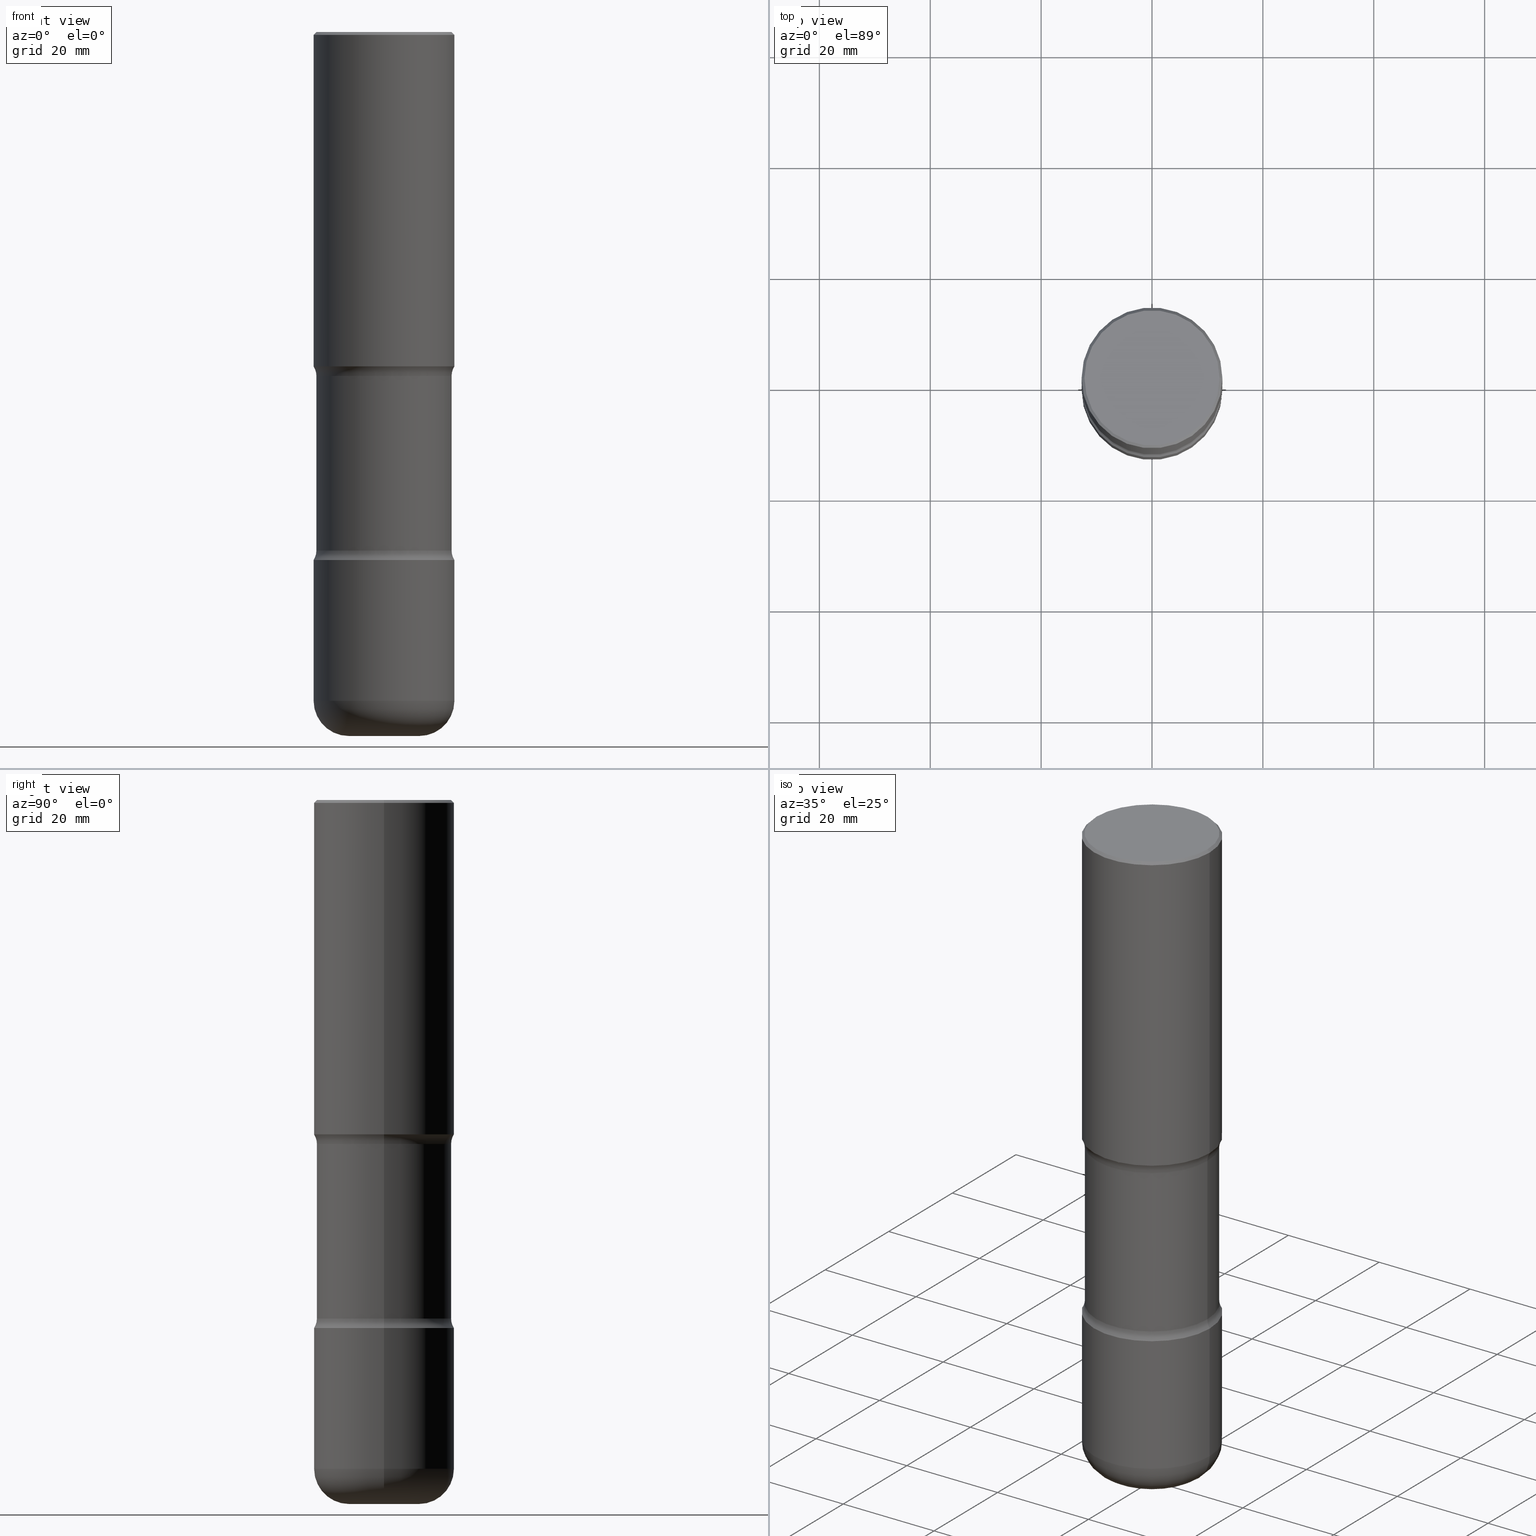
[diagram: canonical four-view strip — front | top / right | iso, engineering-drawing reading convention]
A machine part, canonical four-view strip (front | top / right | iso — engineering-drawing reading convention). The complete STEP part file that produces these views, byte-faithful:
ISO-10303-21;
HEADER;
FILE_DESCRIPTION (( 'STEP AP203' ),
    '1' );
FILE_NAME ('35810.STEP',
    '2023-03-11T07:11:28',
    ( '' ),
    ( '' ),
    'SwSTEP 2.0',
    'SolidWorks 2022',
    '' );
FILE_SCHEMA (( 'CONFIG_CONTROL_DESIGN' ));
ENDSEC;

DATA;
#1 = EDGE_CURVE ( 'NONE', #714, #13, #568, .T. ) ;
#2 = MANIFOLD_SOLID_BREP ( 'Body-Move/Copy2[3]', #5 ) ;
#3 = APPROVAL ( #485, 'UNSPECIFIED' ) ;
#4 = DIRECTION ( 'NONE',  ( 7.105427357601001859E-15, 1.000000000000000000, -3.491481338843145583E-15 ) ) ;
#5 = CLOSED_SHELL ( 'NONE', ( #628, #603, #366, #654, #671, #170, #561, #269 ) ) ;
#6 = CIRCLE ( 'NONE', #178, 0.5000000000000000000 ) ;
#7 = AXIS2_PLACEMENT_3D ( 'NONE', #384, #633, #65 ) ;
#8 = DIRECTION ( 'NONE',  ( 1.000000000000000000, -6.982962677686264344E-15, 0.000000000000000000 ) ) ;
#9 = PLANE ( 'NONE',  #738 ) ;
#10 = ORIENTED_EDGE ( 'NONE', *, *, #249, .F. ) ;
#11 = DIRECTION ( 'NONE',  ( 2.445468806185136877E-29, -3.491481338843145188E-15, -1.000000000000000000 ) ) ;
#12 = DIRECTION ( 'NONE',  ( -1.000000000000000000, 6.982962677686265922E-15, -4.876176775795935793E-29 ) ) ;
#13 = VERTEX_POINT ( 'NONE', #71 ) ;
#14 = ORIENTED_EDGE ( 'NONE', *, *, #89, .T. ) ;
#15 = CARTESIAN_POINT ( 'NONE',  ( 4.890937612370299433E-31, -6.982962677686328587E-17, -0.02000000000000010797 ) ) ;
#16 = DIRECTION ( 'NONE',  ( 2.438088387897960049E-29, -3.491481338843145188E-15, -1.000000000000000000 ) ) ;
#17 = ORIENTED_EDGE ( 'NONE', *, *, #728, .T. ) ;
#18 = VERTEX_POINT ( 'NONE', #702 ) ;
#19 = MANIFOLD_SOLID_BREP ( 'Body-Move/Copy2[1]', #56 ) ;
#20 = CLOSED_SHELL ( 'NONE', ( #118, #250, #487, #220, #734, #396 ) ) ;
#21 = CIRCLE ( 'NONE', #726, 0.5000000000000000000 ) ;
#22 = FACE_OUTER_BOUND ( 'NONE', #263, .T. ) ;
#23 = DIRECTION ( 'NONE',  ( -2.438088387897960049E-29, 3.491481338843145188E-15, 1.000000000000000000 ) ) ;
#24 = CARTESIAN_POINT ( 'NONE',  ( 5.807988414689700538E-29, -8.292268179752471696E-15, -2.375000000000000000 ) ) ;
#25 = CARTESIAN_POINT ( 'NONE',  ( 1.221026450042967533E-28, -1.743302165121203264E-14, -4.993015846101650723 ) ) ;
#26 = ORIENTED_EDGE ( 'NONE', *, *, #155, .F. ) ;
#27 = DIRECTION ( 'NONE',  ( 2.445468806185136597E-29, -3.491481338843145583E-15, -1.000000000000000000 ) ) ;
#28 = DIRECTION ( 'NONE',  ( -2.445468806185136597E-29, 3.491481338843145583E-15, 1.000000000000000000 ) ) ;
#29 = ORIENTED_EDGE ( 'NONE', *, *, #572, .T. ) ;
#30 = CARTESIAN_POINT ( 'NONE',  ( 1.161597682937940108E-28, -1.658453635950494339E-14, -4.750000000000000000 ) ) ;
#31 = DIRECTION ( 'NONE',  ( -1.000000000000000000, 6.982962677686266711E-15, -4.883557194083112901E-29 ) ) ;
#32 = CALENDAR_DATE ( 2023, 11, 3 ) ;
#33 = ORIENTED_EDGE ( 'NONE', *, *, #681, .T. ) ;
#34 = AXIS2_PLACEMENT_3D ( 'NONE', #288, #538, #45 ) ;
#35 = AXIS2_PLACEMENT_3D ( 'NONE', #59, #204, #446 ) ;
#36 = CIRCLE ( 'NONE', #765, 0.2500000000000000555 ) ;
#37 = DIRECTION ( 'NONE',  ( -2.445468806185136597E-29, 3.491481338843145583E-15, 1.000000000000000000 ) ) ;
#38 = APPROVAL_STATUS ( 'not_yet_approved' ) ;
#39 = EDGE_CURVE ( 'NONE', #290, #650, #381, .T. ) ;
#40 = CARTESIAN_POINT ( 'NONE',  ( 9.170508023194262238E-29, -1.309305502066179741E-14, -3.750000000000000000 ) ) ;
#41 = EDGE_CURVE ( 'NONE', #597, #275, #79, .T. ) ;
#42 = EDGE_LOOP ( 'NONE', ( #221, #510 ) ) ;
#43 =( NAMED_UNIT ( * ) SI_UNIT ( $, .STERADIAN. ) SOLID_ANGLE_UNIT ( ) );
#44 = DIRECTION ( 'NONE',  ( -1.000000000000000000, 6.982962677686265922E-15, 0.000000000000000000 ) ) ;
#45 = DIRECTION ( 'NONE',  ( 1.000000000000000000, -6.982962677686276966E-15, 0.000000000000000000 ) ) ;
#46 = CARTESIAN_POINT ( 'NONE',  ( 0.4999999999999999445, -2.007601769834807675E-14, -4.750000000000000000 ) ) ;
#47 = ORIENTED_EDGE ( 'NONE', *, *, #433, .T. ) ;
#48 = CIRCLE ( 'NONE', #643, 0.2499999999999998612 ) ;
#49 = CIRCLE ( 'NONE', #60, 0.5000000000000000000 ) ;
#50 = DIRECTION ( 'NONE',  ( 1.000000000000000000, -6.982962677686266711E-15, 0.000000000000000000 ) ) ;
#51 = ORIENTED_EDGE ( 'NONE', *, *, #433, .F. ) ;
#52 = FACE_OUTER_BOUND ( 'NONE', #228, .T. ) ;
#53 = PLANE ( 'NONE',  #248 ) ;
#54 = DIRECTION ( 'NONE',  ( -2.438088387897960049E-29, 3.491481338843145188E-15, 1.000000000000000000 ) ) ;
#55 = VERTEX_POINT ( 'NONE', #770 ) ;
#56 = CLOSED_SHELL ( 'NONE', ( #75, #194, #299, #566, #300, #693, #581, #106 ) ) ;
#57 = DIRECTION ( 'NONE',  ( 2.445468806185136597E-29, -3.491481338843145583E-15, -1.000000000000000000 ) ) ;
#58 = CIRCLE ( 'NONE', #382, 0.5000000000000000000 ) ;
#59 = CARTESIAN_POINT ( 'NONE',  ( 9.004648259124392254E-29, -1.285625123496221394E-14, -3.682176700168747541 ) ) ;
#60 = AXIS2_PLACEMENT_3D ( 'NONE', #24, #705, #327 ) ;
#61 = CYLINDRICAL_SURFACE ( 'NONE', #482, 0.4999999999999998335 ) ;
#62 = CC_DESIGN_APPROVAL ( #3, ( #383 ) ) ;
#63 = EDGE_CURVE ( 'NONE', #286, #18, #226, .T. ) ;
#64 = DIRECTION ( 'NONE',  ( -1.000000000000000000, 6.982962677686266711E-15, 0.000000000000000000 ) ) ;
#65 = DIRECTION ( 'NONE',  ( 1.000000000000000000, -6.982962677686265922E-15, 4.883557194083112901E-29 ) ) ;
#66 = LINE ( 'NONE', #336, #437 ) ;
#67 = FACE_BOUND ( 'NONE', #81, .T. ) ;
#68 = PERSON ( 'UNSPECIFIED', 'UNSPECIFIED', 'UNSPECIFIED', ('UNSPECIFIED'), ('UNSPECIFIED'), ('UNSPECIFIED') ) ;
#69 = CARTESIAN_POINT ( 'NONE',  ( 5.807988414689700538E-29, -8.292268179752471696E-15, -2.375000000000000000 ) ) ;
#70 = CARTESIAN_POINT ( 'NONE',  ( 0.000000000000000000, 0.000000000000000000, 0.000000000000000000 ) ) ;
#71 = CARTESIAN_POINT ( 'NONE',  ( -0.4799999999999996492, 3.386736898677836436E-15, 1.280553747027767124E-17 ) ) ;
#72 = AXIS2_PLACEMENT_3D ( 'NONE', #578, #452, #394 ) ;
#73 = DIRECTION ( 'NONE',  ( -6.982962677686266711E-15, -1.000000000000000000, 3.491481338843145583E-15 ) ) ;
#74 = AXIS2_PLACEMENT_3D ( 'NONE', #750, #27, #279 ) ;
#75 = ADVANCED_FACE ( 'NONE', ( #128 ), #494, .F. ) ;
#76 = CARTESIAN_POINT ( 'NONE',  ( 0.5000000000000000000, -1.178374951859560347E-14, -2.375000000000000000 ) ) ;
#77 = VERTEX_POINT ( 'NONE', #184 ) ;
#78 = CYLINDRICAL_SURFACE ( 'NONE', #656, 0.4800000000000000933 ) ;
#79 = LINE ( 'NONE', #25, #104 ) ;
#80 = PLANE ( 'NONE',  #504 ) ;
#81 = EDGE_LOOP ( 'NONE', ( #771, #461 ) ) ;
#82 = DIRECTION ( 'NONE',  ( 0.7071067811865452413, -7.319954787623248157E-15, -0.7071067811865497932 ) ) ;
#83 = VERTEX_POINT ( 'NONE', #188 ) ;
#84 = DIRECTION ( 'NONE',  ( 1.000000000000000000, -6.982962677686264344E-15, 0.000000000000000000 ) ) ;
#85 = FACE_OUTER_BOUND ( 'NONE', #215, .T. ) ;
#86 = CARTESIAN_POINT ( 'NONE',  ( -3.131554243005659264E-46, 4.471029511141341874E-32, 1.280553747030123384E-17 ) ) ;
#87 = AXIS2_PLACEMENT_3D ( 'NONE', #158, #775, #653 ) ;
#88 = AXIS2_PLACEMENT_3D ( 'NONE', #600, #168, #268 ) ;
#89 = EDGE_CURVE ( 'NONE', #13, #77, #507, .T. ) ;
#90 = DIRECTION ( 'NONE',  ( 2.445468806185136597E-29, -3.491481338843145583E-15, -1.000000000000000000 ) ) ;
#91 = ORIENTED_EDGE ( 'NONE', *, *, #459, .T. ) ;
#92 = COORDINATED_UNIVERSAL_TIME_OFFSET ( 5, 0, .BEHIND. ) ;
#93 = EDGE_CURVE ( 'NONE', #468, #166, #131, .T. ) ;
#94 = DIRECTION ( 'NONE',  ( -2.438088387897960049E-29, 3.491481338843145188E-15, 1.000000000000000000 ) ) ;
#95 = ORIENTED_EDGE ( 'NONE', *, *, #385, .T. ) ;
#96 = VERTEX_POINT ( 'NONE', #621 ) ;
#97 = DIRECTION ( 'NONE',  ( -1.000000000000000000, 7.105427357601001859E-15, 0.000000000000000000 ) ) ;
#98 = PERSON_AND_ORGANIZATION ( #68, #453 ) ;
#99 = DIRECTION ( 'NONE',  ( 1.000000000000000000, -6.982962677686267499E-15, 4.883557194083112901E-29 ) ) ;
#100 = EDGE_CURVE ( 'NONE', #529, #83, #466, .T. ) ;
#101 = DIRECTION ( 'NONE',  ( 2.438088387897960049E-29, -3.491481338843145188E-15, -1.000000000000000000 ) ) ;
#102 = DIRECTION ( 'NONE',  ( 1.000000000000000000, -6.982962677686261189E-15, 0.000000000000000000 ) ) ;
#103 = APPLICATION_PROTOCOL_DEFINITION ( 'international standard', 'config_control_design', 1994, #795 ) ;
#104 = VECTOR ( 'NONE', #757, 39.37007874015748143 ) ;
#105 = CIRCLE ( 'NONE', #395, 0.1249999999999999029 ) ;
#106 = ADVANCED_FACE ( 'NONE', ( #445 ), #590, .F. ) ;
#107 = ORIENTED_EDGE ( 'NONE', *, *, #777, .F. ) ;
#108 = AXIS2_PLACEMENT_3D ( 'NONE', #147, #598, #31 ) ;
#109 = EDGE_LOOP ( 'NONE', ( #255, #315, #588 ) ) ;
#110 = APPROVAL_DATE_TIME ( #786, #126 ) ;
#111 = ORIENTED_EDGE ( 'NONE', *, *, #195, .T. ) ;
#112 = DIRECTION ( 'NONE',  ( 1.000000000000000000, -6.982962677686269077E-15, 4.883557194083114022E-29 ) ) ;
#113 = EDGE_LOOP ( 'NONE', ( #352, #725, #14, #91 ) ) ;
#114 = VERTEX_POINT ( 'NONE', #258 ) ;
#115 = CARTESIAN_POINT ( 'NONE',  ( 1.161597682937940108E-28, -1.658453635950494339E-14, -4.750000000000000000 ) ) ;
#116 = ORIENTED_EDGE ( 'NONE', *, *, #698, .T. ) ;
#117 = EDGE_LOOP ( 'NONE', ( #230, #638, #246, #282 ) ) ;
#118 = ADVANCED_FACE ( 'NONE', ( #746 ), #448, .T. ) ;
#119 = CIRCLE ( 'NONE', #576, 0.4800000000000000933 ) ;
#120 = DIRECTION ( 'NONE',  ( -2.445468806185136597E-29, 3.491481338843145583E-15, 1.000000000000000000 ) ) ;
#121 = AXIS2_PLACEMENT_3D ( 'NONE', #132, #317, #457 ) ;
#122 = PRODUCT ( '35810', '35810', '', ( #303 ) ) ;
#123 = AXIS2_PLACEMENT_3D ( 'NONE', #496, #604, #102 ) ;
#124 = DIRECTION ( 'NONE',  ( -2.445468806185136597E-29, 3.491481338843145583E-15, 1.000000000000000000 ) ) ;
#125 = ORIENTED_EDGE ( 'NONE', *, *, #688, .T. ) ;
#126 = APPROVAL ( #38, 'UNSPECIFIED' ) ;
#127 = CARTESIAN_POINT ( 'NONE',  ( 9.170508023194262238E-29, -1.309305502066179741E-14, -3.750000000000000000 ) ) ;
#128 = FACE_OUTER_BOUND ( 'NONE', #109, .T. ) ;
#129 = CARTESIAN_POINT ( 'NONE',  ( 1.084885639565374248E-27, -1.548929168812571305E-13, -44.36309458625913749 ) ) ;
#130 = DIRECTION ( 'NONE',  ( 6.860497997771531562E-15, 1.000000000000000000, -3.491481338843145583E-15 ) ) ;
#131 = CIRCLE ( 'NONE', #410, 0.5000000000000000000 ) ;
#132 = CARTESIAN_POINT ( 'NONE',  ( 0.6049999999999998712, -1.267967325410383095E-14, -2.442823299831253347 ) ) ;
#133 = VECTOR ( 'NONE', #351, 39.37007874015748143 ) ;
#134 = CARTESIAN_POINT ( 'NONE',  ( 0.000000000000000000, 0.000000000000000000, 0.000000000000000000 ) ) ;
#135 = CARTESIAN_POINT ( 'NONE',  ( 1.222734403092568523E-28, -1.745740669421572989E-14, -5.000000000000000000 ) ) ;
#136 = ORIENTED_EDGE ( 'NONE', *, *, #238, .T. ) ;
#137 = CARTESIAN_POINT ( 'NONE',  ( 5.973848178759570522E-29, -8.529071965452055172E-15, -2.442823299831253347 ) ) ;
#138 = DIRECTION ( 'NONE',  ( 1.000000000000000000, -6.982962677686268288E-15, 0.000000000000000000 ) ) ;
#139 = ORIENTED_EDGE ( 'NONE', *, *, #733, .F. ) ;
#140 = DIRECTION ( 'NONE',  ( 1.000000000000000000, -6.982962677686265133E-15, 0.000000000000000000 ) ) ;
#141 = VERTEX_POINT ( 'NONE', #343 ) ;
#142 = EDGE_CURVE ( 'NONE', #474, #141, #685, .T. ) ;
#143 = DIRECTION ( 'NONE',  ( -2.445468806185136597E-29, 3.491481338843145583E-15, 1.000000000000000000 ) ) ;
#144 = EDGE_CURVE ( 'NONE', #290, #740, #348, .T. ) ;
#145 = DIRECTION ( 'NONE',  ( -2.445468806185136877E-29, 3.491481338843145188E-15, 1.000000000000000000 ) ) ;
#146 = VECTOR ( 'NONE', #380, 39.37007874015748143 ) ;
#147 = CARTESIAN_POINT ( 'NONE',  ( 9.004648259124392254E-29, -1.285625123496221394E-14, -3.682176700168747541 ) ) ;
#148 = VECTOR ( 'NONE', #232, 39.37007874015748143 ) ;
#149 = DIRECTION ( 'NONE',  ( 1.000000000000000000, -6.982962677686265922E-15, 4.876176775795935793E-29 ) ) ;
#150 = CARTESIAN_POINT ( 'NONE',  ( 1.203196691032471165E-28, -8.995283030165400417E-15, -3.750000000000000000 ) ) ;
#151 = ORIENTED_EDGE ( 'NONE', *, *, #1, .F. ) ;
#152 = VERTEX_POINT ( 'NONE', #407 ) ;
#153 = DIRECTION ( 'NONE',  ( -2.445468806185136597E-29, 3.491481338843145583E-15, 1.000000000000000000 ) ) ;
#154 = EDGE_CURVE ( 'NONE', #540, #275, #789, .T. ) ;
#155 = EDGE_CURVE ( 'NONE', #256, #114, #697, .T. ) ;
#156 = ADVANCED_BREP_SHAPE_REPRESENTATION ( '35810', ( #19, #557, #2, #306, #325 ), #668 ) ;
#157 = DIRECTION ( 'NONE',  ( -2.445468806185136597E-29, 3.491481338843145583E-15, 1.000000000000000000 ) ) ;
#158 = CARTESIAN_POINT ( 'NONE',  ( 9.170508023194262238E-29, -1.309305502066179741E-14, -3.750000000000000000 ) ) ;
#159 = ORIENTED_EDGE ( 'NONE', *, *, #142, .T. ) ;
#160 = CARTESIAN_POINT ( 'NONE',  ( -0.6050000000000000933, -8.557467683613607939E-15, -3.682176700168747541 ) ) ;
#161 = AXIS2_PLACEMENT_3D ( 'NONE', #115, #556, #363 ) ;
#162 = PERSON_AND_ORGANIZATION_ROLE ( 'creator' ) ;
#163 = LOCAL_TIME ( 2, 11, 28.00000000000000000, #167 ) ;
#164 = PLANE ( 'NONE',  #534 ) ;
#165 = LINE ( 'NONE', #293, #790 ) ;
#166 = VERTEX_POINT ( 'NONE', #266 ) ;
#167 = COORDINATED_UNIVERSAL_TIME_OFFSET ( 5, 0, .BEHIND. ) ;
#168 = DIRECTION ( 'NONE',  ( 2.445468806185136597E-29, -3.491481338843145583E-15, -1.000000000000000000 ) ) ;
#169 = DIRECTION ( 'NONE',  ( 1.000000000000000000, -6.982962677686269077E-15, 4.883557194083114022E-29 ) ) ;
#170 = ADVANCED_FACE ( 'NONE', ( #747 ), #471, .T. ) ;
#171 = DIRECTION ( 'NONE',  ( 2.445468806185136597E-29, -3.491481338843145583E-15, -1.000000000000000000 ) ) ;
#172 = DATE_AND_TIME ( #660, #179 ) ;
#173 = CARTESIAN_POINT ( 'NONE',  ( 9.004648259124392254E-29, -1.285625123496221394E-14, -3.682176700168747541 ) ) ;
#174 = CARTESIAN_POINT ( 'NONE',  ( 1.203196691032471165E-28, -8.995283030165400417E-15, -3.750000000000000000 ) ) ;
#175 = CC_DESIGN_PERSON_AND_ORGANIZATION_ASSIGNMENT ( #247, #162, ( #464 ) ) ;
#176 = FACE_OUTER_BOUND ( 'NONE', #117, .T. ) ;
#177 = ORIENTED_EDGE ( 'NONE', *, *, #155, .T. ) ;
#178 = AXIS2_PLACEMENT_3D ( 'NONE', #514, #455, #140 ) ;
#179 = LOCAL_TIME ( 2, 11, 28.00000000000000000, #354 ) ;
#180 = ORIENTED_EDGE ( 'NONE', *, *, #63, .T. ) ;
#181 = CARTESIAN_POINT ( 'NONE',  ( 0.5000000000000001110, -1.652330401954756320E-14, -3.750000000000000000 ) ) ;
#182 = ORIENTED_EDGE ( 'NONE', *, *, #342, .F. ) ;
#183 = CALENDAR_DATE ( 2023, 11, 3 ) ;
#184 = CARTESIAN_POINT ( 'NONE',  ( -0.4999999999999996669, 3.421651712066267691E-15, -0.02000000000000010797 ) ) ;
#185 = CARTESIAN_POINT ( 'NONE',  ( 4.890937612370299433E-31, -6.982962677686328587E-17, -0.02000000000000010797 ) ) ;
#186 = EDGE_LOOP ( 'NONE', ( #781, #481, #33, #339 ) ) ;
#187 = EDGE_LOOP ( 'NONE', ( #151, #731, #17, #535 ) ) ;
#188 = CARTESIAN_POINT ( 'NONE',  ( -0.5000000000000001110, -9.601573681818664059E-15, -3.750000000000000000 ) ) ;
#189 = FACE_OUTER_BOUND ( 'NONE', #680, .T. ) ;
#190 = ORIENTED_EDGE ( 'NONE', *, *, #393, .F. ) ;
#191 = TOROIDAL_SURFACE ( 'NONE', #642, 0.2500000000000000000, 0.2499999999999998890 ) ;
#192 = CIRCLE ( 'NONE', #161, 0.5000000000000000000 ) ;
#193 = EDGE_LOOP ( 'NONE', ( #432, #627 ) ) ;
#194 = ADVANCED_FACE ( 'NONE', ( #456 ), #402, .T. ) ;
#195 = EDGE_CURVE ( 'NONE', #114, #468, #634, .T. ) ;
#196 = DIRECTION ( 'NONE',  ( 1.000000000000000000, -6.982962677686268288E-15, 0.000000000000000000 ) ) ;
#197 = CARTESIAN_POINT ( 'NONE',  ( 9.004648259124392254E-29, -1.285625123496221394E-14, -3.682176700168747541 ) ) ;
#198 =( LENGTH_UNIT ( ) NAMED_UNIT ( * ) SI_UNIT ( $, .METRE. ) );
#199 = FACE_OUTER_BOUND ( 'NONE', #187, .T. ) ;
#200 = VECTOR ( 'NONE', #646, 39.37007874015748143 ) ;
#201 = CIRCLE ( 'NONE', #311, 0.1250000000000000278 ) ;
#202 = PRODUCT_DEFINITION_FORMATION_WITH_SPECIFIED_SOURCE ( 'ANY', '', #122, .NOT_KNOWN. ) ;
#203 = DIRECTION ( 'NONE',  ( -2.445468806185136597E-29, 3.491481338843145583E-15, 1.000000000000000000 ) ) ;
#204 = DIRECTION ( 'NONE',  ( -2.445468806185136597E-29, 3.491481338843145583E-15, 1.000000000000000000 ) ) ;
#205 = EDGE_LOOP ( 'NONE', ( #558, #766, #159, #690 ) ) ;
#206 = EDGE_CURVE ( 'NONE', #96, #501, #66, .T. ) ;
#207 = LINE ( 'NONE', #752, #620 ) ;
#208 = CC_DESIGN_PERSON_AND_ORGANIZATION_ASSIGNMENT ( #723, #616, ( #383 ) ) ;
#209 = DIRECTION ( 'NONE',  ( -1.000000000000000000, 6.982962677686265922E-15, -4.876176775795935793E-29 ) ) ;
#210 = ORIENTED_EDGE ( 'NONE', *, *, #63, .F. ) ;
#211 = ORIENTED_EDGE ( 'NONE', *, *, #596, .F. ) ;
#212 = CARTESIAN_POINT ( 'NONE',  ( 1.222734403092568523E-28, -1.745740669421572989E-14, -5.000000000000000000 ) ) ;
#213 = DIRECTION ( 'NONE',  ( 1.000000000000000000, -6.982962677686265133E-15, 0.000000000000000000 ) ) ;
#214 = ORIENTED_EDGE ( 'NONE', *, *, #596, .T. ) ;
#215 = EDGE_LOOP ( 'NONE', ( #542, #391, #10, #345 ) ) ;
#216 = ORIENTED_EDGE ( 'NONE', *, *, #413, .F. ) ;
#217 = VECTOR ( 'NONE', #794, 39.37007874015748143 ) ;
#218 = CIRCLE ( 'NONE', #498, 0.4999999999999996669 ) ;
#219 = CARTESIAN_POINT ( 'NONE',  ( 5.973848178759569401E-29, -8.529071965452053594E-15, -2.442823299831252903 ) ) ;
#220 = ADVANCED_FACE ( 'NONE', ( #270 ), #80, .F. ) ;
#221 = ORIENTED_EDGE ( 'NONE', *, *, #625, .T. ) ;
#222 = ORIENTED_EDGE ( 'NONE', *, *, #674, .T. ) ;
#223 = DIRECTION ( 'NONE',  ( -1.000000000000000000, 6.982962677686265922E-15, -4.883557194083112901E-29 ) ) ;
#224 = CARTESIAN_POINT ( 'NONE',  ( 1.222734403092568523E-28, -1.745740669421572989E-14, -5.000000000000000000 ) ) ;
#225 = DIRECTION ( 'NONE',  ( -2.445468806185136597E-29, 3.491481338843145583E-15, 1.000000000000000000 ) ) ;
#226 = LINE ( 'NONE', #476, #749 ) ;
#227 = VERTEX_POINT ( 'NONE', #764 ) ;
#228 = EDGE_LOOP ( 'NONE', ( #310, #29, #216, #190 ) ) ;
#229 = CARTESIAN_POINT ( 'NONE',  ( 1.161597682937940108E-28, -1.658453635950494339E-14, -4.750000000000000000 ) ) ;
#230 = ORIENTED_EDGE ( 'NONE', *, *, #698, .F. ) ;
#231 = EDGE_LOOP ( 'NONE', ( #787, #222, #491, #434 ) ) ;
#232 = DIRECTION ( 'NONE',  ( -0.9993908270190957621, 6.856857904024560415E-15, -0.03489949670249996999 ) ) ;
#233 = TOROIDAL_SURFACE ( 'NONE', #545, 0.2500000000000000000, 0.2499999999999998890 ) ;
#234 = TOROIDAL_SURFACE ( 'NONE', #569, 0.6049999999999998712, 0.1249999999999998751 ) ;
#235 = CIRCLE ( 'NONE', #399, 0.5000000000000000000 ) ;
#236 = DIRECTION ( 'NONE',  ( 1.000000000000000000, -6.982962677686264344E-15, 0.000000000000000000 ) ) ;
#237 = CARTESIAN_POINT ( 'NONE',  ( 9.004648259124392254E-29, -1.285625123496221394E-14, -3.682176700168747541 ) ) ;
#238 = EDGE_CURVE ( 'NONE', #650, #501, #119, .T. ) ;
#239 = DATE_TIME_ROLE ( 'creation_date' ) ;
#240 = ORIENTED_EDGE ( 'NONE', *, *, #515, .T. ) ;
#241 = DIRECTION ( 'NONE',  ( 1.000000000000000000, -6.982962677686268288E-15, 0.000000000000000000 ) ) ;
#242 = CARTESIAN_POINT ( 'NONE',  ( 0.2500000000000000000, -1.833027702892651007E-14, -4.750000000000000000 ) ) ;
#243 = ORIENTED_EDGE ( 'NONE', *, *, #512, .F. ) ;
#244 = PERSON_AND_ORGANIZATION_ROLE ( 'creator' ) ;
#245 = CARTESIAN_POINT ( 'NONE',  ( 5.807988414689700538E-29, -8.292268179752471696E-15, -2.375000000000000000 ) ) ;
#246 = ORIENTED_EDGE ( 'NONE', *, *, #342, .T. ) ;
#247 = PERSON_AND_ORGANIZATION ( #68, #453 ) ;
#248 = AXIS2_PLACEMENT_3D ( 'NONE', #245, #101, #314 ) ;
#249 = EDGE_CURVE ( 'NONE', #501, #650, #520, .T. ) ;
#250 = ADVANCED_FACE ( 'NONE', ( #199 ), #271, .T. ) ;
#251 = CC_DESIGN_DATE_AND_TIME_ASSIGNMENT ( #368, #541, ( #383 ) ) ;
#252 = ORIENTED_EDGE ( 'NONE', *, *, #617, .T. ) ;
#253 = CARTESIAN_POINT ( 'NONE',  ( 5.807988414689700538E-29, -8.292268179752471696E-15, -2.375000000000000000 ) ) ;
#254 = ORIENTED_EDGE ( 'NONE', *, *, #429, .T. ) ;
#255 = ORIENTED_EDGE ( 'NONE', *, *, #706, .F. ) ;
#256 = VERTEX_POINT ( 'NONE', #591 ) ;
#257 = AXIS2_PLACEMENT_3D ( 'NONE', #135, #143, #8 ) ;
#258 = CARTESIAN_POINT ( 'NONE',  ( -0.4999999999999999445, -1.303182268070444246E-14, -4.750000000000000000 ) ) ;
#259 = CIRCLE ( 'NONE', #737, 0.5000000000000000000 ) ;
#260 = CC_DESIGN_APPROVAL ( #126, ( #202 ) ) ;
#261 = DIRECTION ( 'NONE',  ( -1.000000000000000000, 6.982962677686265922E-15, -4.876176775795935793E-29 ) ) ;
#262 = EDGE_CURVE ( 'NONE', #799, #286, #618, .T. ) ;
#263 = EDGE_LOOP ( 'NONE', ( #438, #444, #136, #308 ) ) ;
#264 = LINE ( 'NONE', #565, #146 ) ;
#265 = DIRECTION ( 'NONE',  ( -1.000000000000000000, 6.982962677686266711E-15, 0.000000000000000000 ) ) ;
#266 = CARTESIAN_POINT ( 'NONE',  ( 0.5000000000000000000, -1.658453635950493077E-14, -3.750000000000000000 ) ) ;
#267 = FACE_OUTER_BOUND ( 'NONE', #744, .T. ) ;
#268 = DIRECTION ( 'NONE',  ( -1.000000000000000000, 6.982962677686266711E-15, 0.000000000000000000 ) ) ;
#269 = ADVANCED_FACE ( 'NONE', ( #687 ), #328, .T. ) ;
#270 = FACE_OUTER_BOUND ( 'NONE', #193, .T. ) ;
#271 = CONICAL_SURFACE ( 'NONE', #711, 0.4999999999999996669, 0.7853981633974450594 ) ;
#272 = AXIS2_PLACEMENT_3D ( 'NONE', #511, #735, #64 ) ;
#273 = CC_DESIGN_SECURITY_CLASSIFICATION ( #383, ( #202 ) ) ;
#274 = FACE_OUTER_BOUND ( 'NONE', #796, .T. ) ;
#275 = VERTEX_POINT ( 'NONE', #390 ) ;
#276 = DIRECTION ( 'NONE',  ( 1.000000000000000000, -6.982962677686267499E-15, 4.876176775795936353E-29 ) ) ;
#277 = DIRECTION ( 'NONE',  ( 1.000000000000000000, -6.982962677686264344E-15, 0.000000000000000000 ) ) ;
#278 = DIRECTION ( 'NONE',  ( -1.000000000000000000, 7.105427357601001859E-15, 0.000000000000000000 ) ) ;
#279 = DIRECTION ( 'NONE',  ( -1.000000000000000000, 6.982962677686265922E-15, 0.000000000000000000 ) ) ;
#280 = DIRECTION ( 'NONE',  ( -2.445468806185136597E-29, 3.491481338843145583E-15, 1.000000000000000000 ) ) ;
#281 = DIRECTION ( 'NONE',  ( 1.000000000000000000, -6.982962677686267499E-15, 4.876176775795936353E-29 ) ) ;
#282 = ORIENTED_EDGE ( 'NONE', *, *, #512, .T. ) ;
#283 = AXIS2_PLACEMENT_3D ( 'NONE', #700, #516, #277 ) ;
#284 = ORIENTED_EDGE ( 'NONE', *, *, #459, .F. ) ;
#285 = AXIS2_PLACEMENT_3D ( 'NONE', #612, #90, #44 ) ;
#286 = VERTEX_POINT ( 'NONE', #76 ) ;
#287 = CIRCLE ( 'NONE', #123, 0.1250000000000000278 ) ;
#288 = CARTESIAN_POINT ( 'NONE',  ( 0.6050000000000000933, -1.708094365496240561E-14, -3.682176700168747541 ) ) ;
#289 = CARTESIAN_POINT ( 'NONE',  ( 5.807988414689700538E-29, -8.292268179752471696E-15, -2.375000000000000000 ) ) ;
#290 = VERTEX_POINT ( 'NONE', #636 ) ;
#291 = DIRECTION ( 'NONE',  ( 1.000000000000000000, 0.000000000000000000, 0.000000000000000000 ) ) ;
#292 = DIRECTION ( 'NONE',  ( 1.000000000000000000, -6.982962677686265922E-15, 4.883557194083112901E-29 ) ) ;
#293 = CARTESIAN_POINT ( 'NONE',  ( 0.4999999999999996669, -3.500078625662626713E-15, -0.02000000000000010797 ) ) ;
#294 = ORIENTED_EDGE ( 'NONE', *, *, #647, .T. ) ;
#295 = DIRECTION ( 'NONE',  ( -2.445468806185136597E-29, 3.491481338843145583E-15, 1.000000000000000000 ) ) ;
#296 = FACE_OUTER_BOUND ( 'NONE', #353, .T. ) ;
#297 = DIRECTION ( 'NONE',  ( 0.000000000000000000, 0.000000000000000000, 1.000000000000000000 ) ) ;
#298 = DIRECTION ( 'NONE',  ( -2.445468806185136597E-29, 3.491481338843145583E-15, 1.000000000000000000 ) ) ;
#299 = ADVANCED_FACE ( 'NONE', ( #274 ), #233, .T. ) ;
#300 = ADVANCED_FACE ( 'NONE', ( #493 ), #191, .T. ) ;
#301 = AXIS2_PLACEMENT_3D ( 'NONE', #237, #225, #670 ) ;
#302 = CONICAL_SURFACE ( 'NONE', #359, 0.4999999999999996669, 0.7853981633974450594 ) ;
#303 = MECHANICAL_CONTEXT ( 'NONE', #795, 'mechanical' ) ;
#304 = CARTESIAN_POINT ( 'NONE',  ( 5.807988414689700538E-29, -8.292268179752471696E-15, -2.375000000000000000 ) ) ;
#305 = EDGE_LOOP ( 'NONE', ( #240, #417 ) ) ;
#306 = MANIFOLD_SOLID_BREP ( 'Body-Move/Copy2[4]', #761 ) ;
#307 = CARTESIAN_POINT ( 'NONE',  ( 0.4800000000000000933, -1.188089405074146193E-14, -2.442823299831252903 ) ) ;
#308 = ORIENTED_EDGE ( 'NONE', *, *, #550, .F. ) ;
#309 = CARTESIAN_POINT ( 'NONE',  ( 0.4800000000000002043, -1.633629714672005731E-14, -3.682176700168747541 ) ) ;
#310 = ORIENTED_EDGE ( 'NONE', *, *, #741, .T. ) ;
#311 = AXIS2_PLACEMENT_3D ( 'NONE', #329, #130, #575 ) ;
#312 = AXIS2_PLACEMENT_3D ( 'NONE', #332, #743, #800 ) ;
#313 = DIRECTION ( 'NONE',  ( -1.000000000000000000, 6.982962677686266711E-15, 0.000000000000000000 ) ) ;
#314 = DIRECTION ( 'NONE',  ( -1.000000000000000000, 6.982962677686265922E-15, -4.876176775795935793E-29 ) ) ;
#315 = ORIENTED_EDGE ( 'NONE', *, *, #41, .T. ) ;
#316 = EDGE_CURVE ( 'NONE', #96, #649, #322, .T. ) ;
#317 = DIRECTION ( 'NONE',  ( 6.860497997771531562E-15, 1.000000000000000000, -3.491481338843145583E-15 ) ) ;
#318 = DIRECTION ( 'NONE',  ( 1.000000000000000000, -6.982962677686265922E-15, 4.876176775795935793E-29 ) ) ;
#319 = APPROVAL ( #672, 'UNSPECIFIED' ) ;
#320 = CYLINDRICAL_SURFACE ( 'NONE', #497, 0.4800000000000000933 ) ;
#321 = ORIENTED_EDGE ( 'NONE', *, *, #429, .F. ) ;
#322 = CIRCLE ( 'NONE', #301, 0.4800000000000001488 ) ;
#323 = AXIS2_PLACEMENT_3D ( 'NONE', #150, #651, #209 ) ;
#324 = AXIS2_PLACEMENT_3D ( 'NONE', #802, #806, #261 ) ;
#325 = AXIS2_PLACEMENT_3D ( 'NONE', #427, #297, #291 ) ;
#326 = CARTESIAN_POINT ( 'NONE',  ( 5.973848178759569401E-29, -8.529071965452053594E-15, -2.442823299831252903 ) ) ;
#327 = DIRECTION ( 'NONE',  ( -1.000000000000000000, 6.982962677686266711E-15, 0.000000000000000000 ) ) ;
#328 = CYLINDRICAL_SURFACE ( 'NONE', #531, 0.4800000000000000933 ) ;
#329 = CARTESIAN_POINT ( 'NONE',  ( 0.6050000000000000933, -1.700685252361399287E-14, -3.682176700168747541 ) ) ;
#330 = CARTESIAN_POINT ( 'NONE',  ( -3.131554243005659264E-46, 4.471029511141341874E-32, 1.280553747030123384E-17 ) ) ;
#331 = DIRECTION ( 'NONE',  ( -1.000000000000000000, 7.105427357601000281E-15, 0.000000000000000000 ) ) ;
#332 = CARTESIAN_POINT ( 'NONE',  ( 9.004648259124392254E-29, -1.285625123496221394E-14, -3.682176700168747541 ) ) ;
#333 = DIRECTION ( 'NONE',  ( 7.105427357601001859E-15, 1.000000000000000000, -3.491481338843145583E-15 ) ) ;
#334 = CIRCLE ( 'NONE', #506, 0.2500000000000000555 ) ;
#335 = CARTESIAN_POINT ( 'NONE',  ( -0.4800000000000000933, -1.408119956592262430E-14, -4.993015846101650723 ) ) ;
#336 = CARTESIAN_POINT ( 'NONE',  ( 0.4800000000000000933, -1.164409026504188161E-14, -2.375000000000000000 ) ) ;
#337 = ADVANCED_FACE ( 'NONE', ( #661 ), #721, .F. ) ;
#338 = ORIENTED_EDGE ( 'NONE', *, *, #773, .F. ) ;
#339 = ORIENTED_EDGE ( 'NONE', *, *, #413, .T. ) ;
#340 = DIRECTION ( 'NONE',  ( 2.445468806185136597E-29, -3.491481338843145583E-15, -1.000000000000000000 ) ) ;
#341 = DIRECTION ( 'NONE',  ( 1.000000000000000000, -6.982962677686269077E-15, 0.000000000000000000 ) ) ;
#342 = EDGE_CURVE ( 'NONE', #96, #398, #736, .T. ) ;
#343 = CARTESIAN_POINT ( 'NONE',  ( -0.5000000000000001110, -4.800786840909337551E-15, -2.375000000000000000 ) ) ;
#344 = EDGE_LOOP ( 'NONE', ( #709, #377, #252, #703 ) ) ;
#345 = ORIENTED_EDGE ( 'NONE', *, *, #206, .F. ) ;
#346 = DIRECTION ( 'NONE',  ( 1.000000000000000000, -6.982962677686264344E-15, 0.000000000000000000 ) ) ;
#347 = DIRECTION ( 'NONE',  ( -2.445468806185136597E-29, 3.491481338843145583E-15, 1.000000000000000000 ) ) ;
#348 = CIRCLE ( 'NONE', #605, 0.5000000000000000000 ) ;
#349 = AXIS2_PLACEMENT_3D ( 'NONE', #562, #171, #420 ) ;
#350 = LOCAL_TIME ( 2, 11, 28.00000000000000000, #611 ) ;
#351 = DIRECTION ( 'NONE',  ( -2.445468806185136877E-29, 3.491481338843145188E-15, 1.000000000000000000 ) ) ;
#352 = ORIENTED_EDGE ( 'NONE', *, *, #623, .F. ) ;
#353 = EDGE_LOOP ( 'NONE', ( #539, #254, #587, #774 ) ) ;
#354 = COORDINATED_UNIVERSAL_TIME_OFFSET ( 5, 0, .BEHIND. ) ;
#355 = ADVANCED_FACE ( 'NONE', ( #52 ), #673, .T. ) ;
#356 = CARTESIAN_POINT ( 'NONE',  ( 0.5000000000000001110, -1.178374951859560347E-14, -2.375000000000000000 ) ) ;
#357 = CARTESIAN_POINT ( 'NONE',  ( 1.161597682937940108E-28, -1.658453635950494339E-14, -4.750000000000000000 ) ) ;
#358 = AXIS2_PLACEMENT_3D ( 'NONE', #387, #4, #331 ) ;
#359 = AXIS2_PLACEMENT_3D ( 'NONE', #185, #613, #313 ) ;
#360 = ORIENTED_EDGE ( 'NONE', *, *, #674, .F. ) ;
#361 = PERSON_AND_ORGANIZATION ( #68, #453 ) ;
#362 = EDGE_CURVE ( 'NONE', #503, #166, #530, .T. ) ;
#363 = DIRECTION ( 'NONE',  ( 1.000000000000000000, -6.982962677686266711E-15, 0.000000000000000000 ) ) ;
#364 = PERSON_AND_ORGANIZATION ( #68, #453 ) ;
#365 = DIRECTION ( 'NONE',  ( 1.000000000000000000, -6.982962677686266711E-15, 0.000000000000000000 ) ) ;
#366 = ADVANCED_FACE ( 'NONE', ( #22 ), #412, .F. ) ;
#367 = ORIENTED_EDGE ( 'NONE', *, *, #716, .F. ) ;
#368 = DATE_AND_TIME ( #32, #428 ) ;
#369 = ORIENTED_EDGE ( 'NONE', *, *, #550, .T. ) ;
#370 = DIRECTION ( 'NONE',  ( -1.000000000000000000, 6.982962677686267499E-15, 0.000000000000000000 ) ) ;
#371 = CARTESIAN_POINT ( 'NONE',  ( 4.890937612370299433E-31, -6.982962677686328587E-17, -0.02000000000000010797 ) ) ;
#372 = ORIENTED_EDGE ( 'NONE', *, *, #362, .F. ) ;
#373 = CIRCLE ( 'NONE', #121, 0.1249999999999999029 ) ;
#374 = DIRECTION ( 'NONE',  ( 1.000000000000000000, -6.982962677686266711E-15, 0.000000000000000000 ) ) ;
#375 = ADVANCED_FACE ( 'NONE', ( #415 ), #686, .F. ) ;
#376 = DIRECTION ( 'NONE',  ( 1.000000000000000000, -6.982962677686266711E-15, 0.000000000000000000 ) ) ;
#377 = ORIENTED_EDGE ( 'NONE', *, *, #635, .T. ) ;
#378 = SHAPE_DEFINITION_REPRESENTATION ( #798, #156 ) ;
#379 = DIRECTION ( 'NONE',  ( -1.000000000000000000, 6.982962677686267499E-15, 0.000000000000000000 ) ) ;
#380 = DIRECTION ( 'NONE',  ( 2.445468806185136877E-29, -3.491481338843145188E-15, -1.000000000000000000 ) ) ;
#381 = CIRCLE ( 'NONE', #779, 0.1249999999999999029 ) ;
#382 = AXIS2_PLACEMENT_3D ( 'NONE', #30, #295, #715 ) ;
#383 = SECURITY_CLASSIFICATION ( '', '', #492 ) ;
#384 = CARTESIAN_POINT ( 'NONE',  ( 5.973848178759570522E-29, -8.529071965452055172E-15, -2.442823299831253347 ) ) ;
#385 = EDGE_CURVE ( 'NONE', #55, #503, #48, .T. ) ;
#386 = FACE_OUTER_BOUND ( 'NONE', #584, .T. ) ;
#387 = CARTESIAN_POINT ( 'NONE',  ( -0.2500000000000000000, -1.480817952010469293E-14, -4.750000000000000000 ) ) ;
#388 = CARTESIAN_POINT ( 'NONE',  ( 1.221026450042967533E-28, -1.743302165121203264E-14, -4.993015846101650723 ) ) ;
#389 = DESIGN_CONTEXT ( 'detailed design', #713, 'design' ) ;
#390 = CARTESIAN_POINT ( 'NONE',  ( 0.2000000000000001499, -1.882950629377003494E-14, -5.000000000000000000 ) ) ;
#391 = ORIENTED_EDGE ( 'NONE', *, *, #441, .T. ) ;
#392 = EDGE_LOOP ( 'NONE', ( #748, #294, #708, #595 ) ) ;
#393 = EDGE_CURVE ( 'NONE', #474, #227, #519, .T. ) ;
#394 = DIRECTION ( 'NONE',  ( 1.000000000000000000, -6.982962677686265133E-15, 0.000000000000000000 ) ) ;
#395 = AXIS2_PLACEMENT_3D ( 'NONE', #783, #676, #241 ) ;
#396 = ADVANCED_FACE ( 'NONE', ( #509 ), #61, .T. ) ;
#397 = CARTESIAN_POINT ( 'NONE',  ( 1.084885639565374248E-27, -1.548929168812571305E-13, -44.36309458625913749 ) ) ;
#398 = VERTEX_POINT ( 'NONE', #626 ) ;
#399 = AXIS2_PLACEMENT_3D ( 'NONE', #69, #472, #652 ) ;
#400 = DIRECTION ( 'NONE',  ( -2.445468806185136597E-29, 3.491481338843145583E-15, 1.000000000000000000 ) ) ;
#401 = ADVANCED_FACE ( 'NONE', ( #682 ), #320, .T. ) ;
#402 = CYLINDRICAL_SURFACE ( 'NONE', #555, 0.5000000000000000000 ) ;
#403 = ORIENTED_EDGE ( 'NONE', *, *, #478, .T. ) ;
#404 = ADVANCED_FACE ( 'NONE', ( #386 ), #234, .F. ) ;
#405 = EDGE_LOOP ( 'NONE', ( #26, #125, #95, #321 ) ) ;
#406 = EDGE_LOOP ( 'NONE', ( #458, #477, #139 ) ) ;
#407 = CARTESIAN_POINT ( 'NONE',  ( 0.5000000000000001110, -1.172251717863823748E-14, -2.375000000000000000 ) ) ;
#408 = DIRECTION ( 'NONE',  ( 7.105427357601001859E-15, 1.000000000000000000, -3.491481338843145583E-15 ) ) ;
#409 = FACE_OUTER_BOUND ( 'NONE', #729, .T. ) ;
#410 = AXIS2_PLACEMENT_3D ( 'NONE', #442, #120, #374 ) ;
#411 = EDGE_LOOP ( 'NONE', ( #403, #658 ) ) ;
#412 = TOROIDAL_SURFACE ( 'NONE', #780, 0.6049999999999998712, 0.1249999999999998751 ) ;
#413 = EDGE_CURVE ( 'NONE', #227, #462, #533, .T. ) ;
#414 = APPROVAL_PERSON_ORGANIZATION ( #361, #126, #730 ) ;
#415 = FACE_OUTER_BOUND ( 'NONE', #344, .T. ) ;
#416 = CC_DESIGN_PERSON_AND_ORGANIZATION_ASSIGNMENT ( #364, #431, ( #202 ) ) ;
#417 = ORIENTED_EDGE ( 'NONE', *, *, #144, .T. ) ;
#418 = CALENDAR_DATE ( 2023, 11, 3 ) ;
#419 = ORIENTED_EDGE ( 'NONE', *, *, #478, .F. ) ;
#420 = DIRECTION ( 'NONE',  ( -1.000000000000000000, 6.982962677686265922E-15, -4.883557194083112901E-29 ) ) ;
#421 =( CONVERSION_BASED_UNIT ( 'INCH', #772 ) LENGTH_UNIT ( ) NAMED_UNIT ( #524 ) );
#422 = DIRECTION ( 'NONE',  ( 1.000000000000000000, -6.982962677686265922E-15, 4.876176775795935793E-29 ) ) ;
#423 = EDGE_LOOP ( 'NONE', ( #243, #51 ) ) ;
#424 = AXIS2_PLACEMENT_3D ( 'NONE', #582, #586, #281 ) ;
#425 = AXIS2_PLACEMENT_3D ( 'NONE', #330, #614, #502 ) ;
#426 = AXIS2_PLACEMENT_3D ( 'NONE', #371, #486, #792 ) ;
#427 = CARTESIAN_POINT ( 'NONE',  ( 0.000000000000000000, 0.000000000000000000, 0.000000000000000000 ) ) ;
#428 = LOCAL_TIME ( 2, 11, 28.00000000000000000, #599 ) ;
#429 = EDGE_CURVE ( 'NONE', #114, #503, #58, .T. ) ;
#430 = CARTESIAN_POINT ( 'NONE',  ( -0.4800000000000000933, -4.881663048103990141E-15, -2.375000000000000000 ) ) ;
#431 = PERSON_AND_ORGANIZATION_ROLE ( 'design_supplier' ) ;
#432 = ORIENTED_EDGE ( 'NONE', *, *, #606, .T. ) ;
#433 = EDGE_CURVE ( 'NONE', #648, #398, #712, .T. ) ;
#434 = ORIENTED_EDGE ( 'NONE', *, *, #617, .F. ) ;
#435 = CARTESIAN_POINT ( 'NONE',  ( -0.4999999999999996669, 3.421651712066267691E-15, -0.02000000000000010797 ) ) ;
#436 = CARTESIAN_POINT ( 'NONE',  ( -0.2000000000000001499, -1.606081415867847339E-14, -5.000000000000000000 ) ) ;
#437 = VECTOR ( 'NONE', #644, 39.37007874015748143 ) ;
#438 = ORIENTED_EDGE ( 'NONE', *, *, #144, .F. ) ;
#439 = CC_DESIGN_PERSON_AND_ORGANIZATION_ASSIGNMENT ( #554, #488, ( #122 ) ) ;
#440 = APPROVAL_PERSON_ORGANIZATION ( #778, #3, #717 ) ;
#441 = EDGE_CURVE ( 'NONE', #649, #650, #722, .T. ) ;
#442 = CARTESIAN_POINT ( 'NONE',  ( 9.170508023194262238E-29, -1.309305502066179741E-14, -3.750000000000000000 ) ) ;
#443 = PLANE ( 'NONE',  #324 ) ;
#444 = ORIENTED_EDGE ( 'NONE', *, *, #39, .T. ) ;
#445 = FACE_OUTER_BOUND ( 'NONE', #406, .T. ) ;
#446 = DIRECTION ( 'NONE',  ( 1.000000000000000000, -6.982962677686267499E-15, 4.883557194083112901E-29 ) ) ;
#447 = DIRECTION ( 'NONE',  ( -2.445468806185136597E-29, 3.491481338843145583E-15, 1.000000000000000000 ) ) ;
#448 = CYLINDRICAL_SURFACE ( 'NONE', #424, 0.4999999999999998335 ) ;
#449 = FACE_OUTER_BOUND ( 'NONE', #583, .T. ) ;
#450 = EDGE_CURVE ( 'NONE', #503, #114, #192, .T. ) ;
#451 = CIRCLE ( 'NONE', #87, 0.5000000000000000000 ) ;
#452 = DIRECTION ( 'NONE',  ( -2.445468806185136597E-29, 3.491481338843145583E-15, 1.000000000000000000 ) ) ;
#453 = ORGANIZATION ( 'UNSPECIFIED', 'UNSPECIFIED', '' ) ;
#454 = ORIENTED_EDGE ( 'NONE', *, *, #716, .T. ) ;
#455 = DIRECTION ( 'NONE',  ( -2.445468806185136597E-29, 3.491481338843145583E-15, 1.000000000000000000 ) ) ;
#456 = FACE_OUTER_BOUND ( 'NONE', #473, .T. ) ;
#457 = DIRECTION ( 'NONE',  ( -1.000000000000000000, 6.860497997771535507E-15, 0.000000000000000000 ) ) ;
#458 = ORIENTED_EDGE ( 'NONE', *, *, #41, .F. ) ;
#459 = EDGE_CURVE ( 'NONE', #77, #18, #677, .T. ) ;
#460 = DIRECTION ( 'NONE',  ( -2.445468806185136597E-29, 3.491481338843145583E-15, 1.000000000000000000 ) ) ;
#461 = ORIENTED_EDGE ( 'NONE', *, *, #733, .T. ) ;
#462 = VERTEX_POINT ( 'NONE', #309 ) ;
#463 = CARTESIAN_POINT ( 'NONE',  ( 0.000000000000000000, 0.000000000000000000, 0.000000000000000000 ) ) ;
#464 = PRODUCT_DEFINITION ( 'UNKNOWN', '', #202, #389 ) ;
#465 = CARTESIAN_POINT ( 'NONE',  ( -0.5000000000000000000, 3.552713678800500929E-15, -2.459467545127452891E-29 ) ) ;
#466 = CIRCLE ( 'NONE', #666, 0.5000000000000000000 ) ;
#467 = CIRCLE ( 'NONE', #592, 0.5000000000000000000 ) ;
#468 = VERTEX_POINT ( 'NONE', #490 ) ;
#469 = ORIENTED_EDGE ( 'NONE', *, *, #385, .F. ) ;
#470 = UNCERTAINTY_MEASURE_WITH_UNIT (LENGTH_MEASURE( 1.000000000000000082E-05 ), #421, 'distance_accuracy_value', 'NONE');
#471 = PLANE ( 'NONE',  #323 ) ;
#472 = DIRECTION ( 'NONE',  ( 2.445468806185136597E-29, -3.491481338843145583E-15, -1.000000000000000000 ) ) ;
#473 = EDGE_LOOP ( 'NONE', ( #669, #111, #419, #372 ) ) ;
#474 = VERTEX_POINT ( 'NONE', #664 ) ;
#475 = DIRECTION ( 'NONE',  ( 1.000000000000000000, -6.982962677686269077E-15, 0.000000000000000000 ) ) ;
#476 = CARTESIAN_POINT ( 'NONE',  ( 0.4999999999999998335, -3.491481338843132566E-15, 2.438088387897967336E-29 ) ) ;
#477 = ORIENTED_EDGE ( 'NONE', *, *, #706, .T. ) ;
#478 = EDGE_CURVE ( 'NONE', #166, #468, #467, .T. ) ;
#479 = PERSON_AND_ORGANIZATION ( #68, #453 ) ;
#480 = ORIENTED_EDGE ( 'NONE', *, *, #773, .T. ) ;
#481 = ORIENTED_EDGE ( 'NONE', *, *, #625, .F. ) ;
#482 = AXIS2_PLACEMENT_3D ( 'NONE', #134, #447, #276 ) ;
#483 = CIRCLE ( 'NONE', #657, 0.4800000000000000933 ) ;
#484 = CARTESIAN_POINT ( 'NONE',  ( 0.4799999999999996492, -3.396558832296479732E-15, 1.280553747032483033E-17 ) ) ;
#485 = APPROVAL_STATUS ( 'not_yet_approved' ) ;
#486 = DIRECTION ( 'NONE',  ( -2.445468806185136597E-29, 3.491481338843145583E-15, 1.000000000000000000 ) ) ;
#487 = ADVANCED_FACE ( 'NONE', ( #610 ), #302, .T. ) ;
#488 = PERSON_AND_ORGANIZATION_ROLE ( 'design_owner' ) ;
#489 = DIRECTION ( 'NONE',  ( -2.445468806185136597E-29, 3.491481338843145583E-15, 1.000000000000000000 ) ) ;
#490 = CARTESIAN_POINT ( 'NONE',  ( -0.5000000000000000000, -1.128608201128286947E-14, -3.750000000000000000 ) ) ;
#491 = ORIENTED_EDGE ( 'NONE', *, *, #393, .T. ) ;
#492 = SECURITY_CLASSIFICATION_LEVEL ( 'unclassified' ) ;
#493 = FACE_OUTER_BOUND ( 'NONE', #405, .T. ) ;
#494 = CONICAL_SURFACE ( 'NONE', #655, 1127.411546571512872, 1.535889741755011029 ) ;
#495 = FACE_OUTER_BOUND ( 'NONE', #205, .T. ) ;
#496 = CARTESIAN_POINT ( 'NONE',  ( -0.6050000000000000933, -8.631558814962022262E-15, -3.682176700168747541 ) ) ;
#497 = AXIS2_PLACEMENT_3D ( 'NONE', #804, #683, #265 ) ;
#498 = AXIS2_PLACEMENT_3D ( 'NONE', #15, #797, #720 ) ;
#499 = PRODUCT_RELATED_PRODUCT_CATEGORY ( 'detail', '', ( #122 ) ) ;
#500 = DIRECTION ( 'NONE',  ( 1.000000000000000000, -6.982962677686266711E-15, 0.000000000000000000 ) ) ;
#501 = VERTEX_POINT ( 'NONE', #307 ) ;
#502 = DIRECTION ( 'NONE',  ( 1.000000000000000000, -6.982962677686267499E-15, 4.876036955247132767E-29 ) ) ;
#503 = VERTEX_POINT ( 'NONE', #46 ) ;
#504 = AXIS2_PLACEMENT_3D ( 'NONE', #522, #16, #12 ) ;
#505 = AXIS2_PLACEMENT_3D ( 'NONE', #639, #54, #318 ) ;
#506 = AXIS2_PLACEMENT_3D ( 'NONE', #696, #400, #341 ) ;
#507 = LINE ( 'NONE', #435, #217 ) ;
#508 = CARTESIAN_POINT ( 'NONE',  ( 0.4800000000000001488, -1.177231409151031349E-14, -2.442823299831252903 ) ) ;
#509 = FACE_OUTER_BOUND ( 'NONE', #602, .T. ) ;
#510 = ORIENTED_EDGE ( 'NONE', *, *, #100, .T. ) ;
#511 = CARTESIAN_POINT ( 'NONE',  ( 1.221026450042967533E-28, -1.743302165121203264E-14, -4.993015846101650723 ) ) ;
#512 = EDGE_CURVE ( 'NONE', #398, #648, #259, .T. ) ;
#513 = CARTESIAN_POINT ( 'NONE',  ( -0.5000000000000001110, -9.540341341861294907E-15, -3.750000000000000000 ) ) ;
#514 = CARTESIAN_POINT ( 'NONE',  ( 5.807988414689700538E-29, -8.292268179752471696E-15, -2.375000000000000000 ) ) ;
#515 = EDGE_CURVE ( 'NONE', #740, #290, #21, .T. ) ;
#516 = DIRECTION ( 'NONE',  ( -6.982962677686266711E-15, -1.000000000000000000, 3.491481338843145583E-15 ) ) ;
#517 = CARTESIAN_POINT ( 'NONE',  ( -0.4800000000000002043, -9.492993722587514039E-15, -3.682176700168747541 ) ) ;
#518 = FACE_OUTER_BOUND ( 'NONE', #411, .T. ) ;
#519 = LINE ( 'NONE', #335, #751 ) ;
#520 = CIRCLE ( 'NONE', #665, 0.4800000000000000933 ) ;
#521 = VECTOR ( 'NONE', #788, 39.37007874015748143 ) ;
#522 = CARTESIAN_POINT ( 'NONE',  ( 3.351822085289405181E-15, 0.4799999999999996492, -1.669508273909558064E-15 ) ) ;
#523 = AXIS2_PLACEMENT_3D ( 'NONE', #463, #28, #707 ) ;
#524 = DIMENSIONAL_EXPONENTS ( 1.000000000000000000, 0.000000000000000000, 0.000000000000000000, 0.000000000000000000, 0.000000000000000000, 0.000000000000000000, 0.000000000000000000 ) ;
#525 = CARTESIAN_POINT ( 'NONE',  ( 5.807988414689700538E-29, -8.292268179752471696E-15, -2.375000000000000000 ) ) ;
#526 = CARTESIAN_POINT ( 'NONE',  ( -0.6049999999999998712, -4.230288414103449963E-15, -2.442823299831253347 ) ) ;
#527 = ADVANCED_FACE ( 'NONE', ( #189 ), #53, .F. ) ;
#528 = DIRECTION ( 'NONE',  ( -2.445468806185136597E-29, 3.491481338843145583E-15, 1.000000000000000000 ) ) ;
#529 = VERTEX_POINT ( 'NONE', #181 ) ;
#530 = LINE ( 'NONE', #762, #133 ) ;
#531 = AXIS2_PLACEMENT_3D ( 'NONE', #574, #203, #138 ) ;
#532 = CARTESIAN_POINT ( 'NONE',  ( 5.807988414689700538E-29, -8.292268179752471696E-15, -2.375000000000000000 ) ) ;
#533 = CIRCLE ( 'NONE', #74, 0.4800000000000001488 ) ;
#534 = AXIS2_PLACEMENT_3D ( 'NONE', #304, #94, #149 ) ;
#535 = ORIENTED_EDGE ( 'NONE', *, *, #89, .F. ) ;
#536 = LOCAL_TIME ( 2, 11, 28.00000000000000000, #92 ) ;
#537 = FACE_OUTER_BOUND ( 'NONE', #186, .T. ) ;
#538 = DIRECTION ( 'NONE',  ( -6.982962677686266711E-15, -1.000000000000000000, 3.491481338843145583E-15 ) ) ;
#539 = ORIENTED_EDGE ( 'NONE', *, *, #195, .F. ) ;
#540 = VERTEX_POINT ( 'NONE', #436 ) ;
#541 = DATE_TIME_ROLE ( 'classification_date' ) ;
#542 = ORIENTED_EDGE ( 'NONE', *, *, #316, .T. ) ;
#543 = ORIENTED_EDGE ( 'NONE', *, *, #249, .T. ) ;
#544 = LINE ( 'NONE', #776, #148 ) ;
#545 = AXIS2_PLACEMENT_3D ( 'NONE', #229, #601, #169 ) ;
#546 = ADVANCED_FACE ( 'NONE', ( #495 ), #667, .F. ) ;
#547 = AXIS2_PLACEMENT_3D ( 'NONE', #553, #124, #365 ) ;
#548 = DIRECTION ( 'NONE',  ( -1.000000000000000000, 6.982962677686266711E-15, 0.000000000000000000 ) ) ;
#549 = APPLICATION_PROTOCOL_DEFINITION ( 'international standard', 'config_control_design', 1994, #713 ) ;
#550 = EDGE_CURVE ( 'NONE', #740, #501, #105, .T. ) ;
#551 = CC_DESIGN_DATE_AND_TIME_ASSIGNMENT ( #172, #239, ( #464 ) ) ;
#552 = APPROVAL_ROLE ( '' ) ;
#553 = CARTESIAN_POINT ( 'NONE',  ( 9.170508023194262238E-29, -1.309305502066179741E-14, -3.750000000000000000 ) ) ;
#554 = PERSON_AND_ORGANIZATION ( #68, #453 ) ;
#555 = AXIS2_PLACEMENT_3D ( 'NONE', #70, #528, #758 ) ;
#556 = DIRECTION ( 'NONE',  ( -2.445468806185136597E-29, 3.491481338843145583E-15, 1.000000000000000000 ) ) ;
#557 = MANIFOLD_SOLID_BREP ( 'Body-Move/Copy2[2]', #20 ) ;
#558 = ORIENTED_EDGE ( 'NONE', *, *, #637, .F. ) ;
#559 = CARTESIAN_POINT ( 'NONE',  ( 9.170508023194262238E-29, -1.309305502066179741E-14, -3.750000000000000000 ) ) ;
#560 = DIRECTION ( 'NONE',  ( -1.000000000000000000, 6.982962677686266711E-15, 0.000000000000000000 ) ) ;
#561 = ADVANCED_FACE ( 'NONE', ( #176 ), #619, .F. ) ;
#562 = CARTESIAN_POINT ( 'NONE',  ( 5.973848178759570522E-29, -8.529071965452055172E-15, -2.442823299831253347 ) ) ;
#563 = ORIENTED_EDGE ( 'NONE', *, *, #262, .T. ) ;
#564 = DIRECTION ( 'NONE',  ( 2.445468806185136597E-29, -3.491481338843145583E-15, -1.000000000000000000 ) ) ;
#565 = CARTESIAN_POINT ( 'NONE',  ( 0.4800000000000000933, -2.072606069014236855E-14, -4.993015846101650723 ) ) ;
#566 = ADVANCED_FACE ( 'NONE', ( #267, #67 ), #571, .F. ) ;
#567 = EDGE_LOOP ( 'NONE', ( #214, #480, #785, #210 ) ) ;
#568 = CIRCLE ( 'NONE', #724, 0.4799999999999996492 ) ;
#569 = AXIS2_PLACEMENT_3D ( 'NONE', #137, #340, #223 ) ;
#570 = CIRCLE ( 'NONE', #579, 0.2000000000000000111 ) ;
#571 = PLANE ( 'NONE',  #505 ) ;
#572 = EDGE_CURVE ( 'NONE', #594, #462, #264, .T. ) ;
#573 = CARTESIAN_POINT ( 'NONE',  ( -0.5000000000000000000, -6.283352244641658772E-16, -2.375000000000000000 ) ) ;
#574 = CARTESIAN_POINT ( 'NONE',  ( 5.807988414689700538E-29, -8.292268179752471696E-15, -2.375000000000000000 ) ) ;
#575 = DIRECTION ( 'NONE',  ( -1.000000000000000000, 6.860497997771528407E-15, 0.000000000000000000 ) ) ;
#576 = AXIS2_PLACEMENT_3D ( 'NONE', #219, #704, #84 ) ;
#577 = CIRCLE ( 'NONE', #312, 0.4800000000000001488 ) ;
#578 = CARTESIAN_POINT ( 'NONE',  ( 5.807988414689700538E-29, -8.292268179752471696E-15, -2.375000000000000000 ) ) ;
#579 = AXIS2_PLACEMENT_3D ( 'NONE', #224, #157, #236 ) ;
#580 = FACE_OUTER_BOUND ( 'NONE', #305, .T. ) ;
#581 = ADVANCED_FACE ( 'NONE', ( #518 ), #443, .F. ) ;
#582 = CARTESIAN_POINT ( 'NONE',  ( 0.000000000000000000, 0.000000000000000000, 0.000000000000000000 ) ) ;
#583 = EDGE_LOOP ( 'NONE', ( #805, #692, #369, #543 ) ) ;
#584 = EDGE_LOOP ( 'NONE', ( #360, #615, #739, #759 ) ) ;
#585 = DIRECTION ( 'NONE',  ( -2.445468806185136877E-29, 3.491481338843145188E-15, 1.000000000000000000 ) ) ;
#586 = DIRECTION ( 'NONE',  ( -2.445468806185136597E-29, 3.491481338843145583E-15, 1.000000000000000000 ) ) ;
#587 = ORIENTED_EDGE ( 'NONE', *, *, #362, .T. ) ;
#588 = ORIENTED_EDGE ( 'NONE', *, *, #154, .F. ) ;
#589 = ORIENTED_EDGE ( 'NONE', *, *, #688, .F. ) ;
#590 = CONICAL_SURFACE ( 'NONE', #630, 1127.411546571512872, 1.535889741755011029 ) ;
#591 = CARTESIAN_POINT ( 'NONE',  ( -0.2500000000000000555, -1.435643626775996094E-14, -5.000000000000000000 ) ) ;
#592 = AXIS2_PLACEMENT_3D ( 'NONE', #559, #622, #50 ) ;
#593 = AXIS2_PLACEMENT_3D ( 'NONE', #160, #408, #97 ) ;
#594 = VERTEX_POINT ( 'NONE', #508 ) ;
#595 = ORIENTED_EDGE ( 'NONE', *, *, #238, .F. ) ;
#596 = EDGE_CURVE ( 'NONE', #286, #799, #6, .T. ) ;
#597 = VERTEX_POINT ( 'NONE', #388 ) ;
#598 = DIRECTION ( 'NONE',  ( 2.445468806185136597E-29, -3.491481338843145583E-15, -1.000000000000000000 ) ) ;
#599 = COORDINATED_UNIVERSAL_TIME_OFFSET ( 5, 0, .BEHIND. ) ;
#600 = CARTESIAN_POINT ( 'NONE',  ( 5.973848178759569401E-29, -8.529071965452053594E-15, -2.442823299831252903 ) ) ;
#601 = DIRECTION ( 'NONE',  ( -2.445468806185136597E-29, 3.491481338843145583E-15, 1.000000000000000000 ) ) ;
#602 = EDGE_LOOP ( 'NONE', ( #338, #563, #180, #284 ) ) ;
#603 = ADVANCED_FACE ( 'NONE', ( #629 ), #631, .F. ) ;
#604 = DIRECTION ( 'NONE',  ( -6.982962677686266711E-15, -1.000000000000000000, 3.491481338843145583E-15 ) ) ;
#605 = AXIS2_PLACEMENT_3D ( 'NONE', #532, #153, #213 ) ;
#606 = EDGE_CURVE ( 'NONE', #13, #714, #607, .T. ) ;
#607 = CIRCLE ( 'NONE', #425, 0.4799999999999996492 ) ;
#608 = CC_DESIGN_APPROVAL ( #319, ( #464 ) ) ;
#609 =( NAMED_UNIT ( * ) PLANE_ANGLE_UNIT ( ) SI_UNIT ( $, .RADIAN. ) );
#610 = FACE_OUTER_BOUND ( 'NONE', #113, .T. ) ;
#611 = COORDINATED_UNIVERSAL_TIME_OFFSET ( 5, 0, .BEHIND. ) ;
#612 = CARTESIAN_POINT ( 'NONE',  ( 9.004648259124392254E-29, -1.285625123496221394E-14, -3.682176700168747541 ) ) ;
#613 = DIRECTION ( 'NONE',  ( 2.445468806185136597E-29, -3.491481338843145583E-15, -1.000000000000000000 ) ) ;
#614 = DIRECTION ( 'NONE',  ( -2.445468806185136597E-29, 3.491481338843145583E-15, 1.000000000000000000 ) ) ;
#615 = ORIENTED_EDGE ( 'NONE', *, *, #637, .T. ) ;
#616 = PERSON_AND_ORGANIZATION_ROLE ( 'classification_officer' ) ;
#617 = EDGE_CURVE ( 'NONE', #462, #227, #763, .T. ) ;
#618 = CIRCLE ( 'NONE', #72, 0.5000000000000000000 ) ;
#619 = TOROIDAL_SURFACE ( 'NONE', #35, 0.6050000000000000933, 0.1250000000000000000 ) ;
#620 = VECTOR ( 'NONE', #585, 39.37007874015748143 ) ;
#621 = CARTESIAN_POINT ( 'NONE',  ( 0.4800000000000001488, -1.620807332025162227E-14, -3.682176700168747541 ) ) ;
#622 = DIRECTION ( 'NONE',  ( -2.445468806185136597E-29, 3.491481338843145583E-15, 1.000000000000000000 ) ) ;
#623 = EDGE_CURVE ( 'NONE', #714, #18, #165, .T. ) ;
#624 = DIRECTION ( 'NONE',  ( -2.445468806185136597E-29, 3.491481338843145583E-15, 1.000000000000000000 ) ) ;
#625 = EDGE_CURVE ( 'NONE', #83, #529, #451, .T. ) ;
#626 = CARTESIAN_POINT ( 'NONE',  ( 0.5000000000000001110, -1.658453635950493077E-14, -3.750000000000000000 ) ) ;
#627 = ORIENTED_EDGE ( 'NONE', *, *, #1, .T. ) ;
#628 = ADVANCED_FACE ( 'NONE', ( #85 ), #78, .T. ) ;
#629 = FACE_OUTER_BOUND ( 'NONE', #769, .T. ) ;
#630 = AXIS2_PLACEMENT_3D ( 'NONE', #129, #564, #379 ) ;
#631 = TOROIDAL_SURFACE ( 'NONE', #699, 0.6050000000000000933, 0.1250000000000000000 ) ;
#632 = CIRCLE ( 'NONE', #88, 0.4800000000000000933 ) ;
#633 = DIRECTION ( 'NONE',  ( -2.445468806185136597E-29, 3.491481338843145583E-15, 1.000000000000000000 ) ) ;
#634 = LINE ( 'NONE', #465, #200 ) ;
#635 = EDGE_CURVE ( 'NONE', #529, #462, #201, .T. ) ;
#636 = CARTESIAN_POINT ( 'NONE',  ( -0.5000000000000001110, -4.739554500951969977E-15, -2.375000000000000000 ) ) ;
#637 = EDGE_CURVE ( 'NONE', #594, #152, #373, .T. ) ;
#638 = ORIENTED_EDGE ( 'NONE', *, *, #316, .F. ) ;
#639 = CARTESIAN_POINT ( 'NONE',  ( 1.222734403092568523E-28, -1.745740669421572989E-14, -5.000000000000000000 ) ) ;
#640 = ORIENTED_EDGE ( 'NONE', *, *, #450, .F. ) ;
#641 = CC_DESIGN_PERSON_AND_ORGANIZATION_ASSIGNMENT ( #98, #244, ( #202 ) ) ;
#642 = AXIS2_PLACEMENT_3D ( 'NONE', #357, #489, #112 ) ;
#643 = AXIS2_PLACEMENT_3D ( 'NONE', #242, #73, #376 ) ;
#644 = DIRECTION ( 'NONE',  ( -2.445468806185136877E-29, 3.491481338843145188E-15, 1.000000000000000000 ) ) ;
#645 = DIRECTION ( 'NONE',  ( 2.445468806185136597E-29, -3.491481338843145583E-15, -1.000000000000000000 ) ) ;
#646 = DIRECTION ( 'NONE',  ( -2.445468806185136877E-29, 3.491481338843145188E-15, 1.000000000000000000 ) ) ;
#647 = EDGE_CURVE ( 'NONE', #649, #96, #577, .T. ) ;
#648 = VERTEX_POINT ( 'NONE', #513 ) ;
#649 = VERTEX_POINT ( 'NONE', #517 ) ;
#650 = VERTEX_POINT ( 'NONE', #691 ) ;
#651 = DIRECTION ( 'NONE',  ( 2.438088387897960049E-29, -3.491481338843145188E-15, -1.000000000000000000 ) ) ;
#652 = DIRECTION ( 'NONE',  ( -1.000000000000000000, 6.982962677686266711E-15, 0.000000000000000000 ) ) ;
#653 = DIRECTION ( 'NONE',  ( -1.000000000000000000, 6.982962677686266711E-15, 0.000000000000000000 ) ) ;
#654 = ADVANCED_FACE ( 'NONE', ( #449 ), #727, .F. ) ;
#655 = AXIS2_PLACEMENT_3D ( 'NONE', #397, #645, #370 ) ;
#656 = AXIS2_PLACEMENT_3D ( 'NONE', #289, #624, #196 ) ;
#657 = AXIS2_PLACEMENT_3D ( 'NONE', #326, #57, #548 ) ;
#658 = ORIENTED_EDGE ( 'NONE', *, *, #93, .T. ) ;
#659 = CYLINDRICAL_SURFACE ( 'NONE', #523, 0.5000000000000000000 ) ;
#660 = CALENDAR_DATE ( 2023, 11, 3 ) ;
#661 = FACE_OUTER_BOUND ( 'NONE', #42, .T. ) ;
#662 = DATE_AND_TIME ( #418, #163 ) ;
#663 = DIRECTION ( 'NONE',  ( -2.445468806185136597E-29, 3.491481338843145583E-15, 1.000000000000000000 ) ) ;
#664 = CARTESIAN_POINT ( 'NONE',  ( -0.4800000000000000933, -5.177249880162645258E-15, -2.442823299831252903 ) ) ;
#665 = AXIS2_PLACEMENT_3D ( 'NONE', #755, #460, #346 ) ;
#666 = AXIS2_PLACEMENT_3D ( 'NONE', #127, #742, #560 ) ;
#667 = TOROIDAL_SURFACE ( 'NONE', #349, 0.6049999999999998712, 0.1249999999999998751 ) ;
#668 =( GEOMETRIC_REPRESENTATION_CONTEXT ( 3 ) GLOBAL_UNCERTAINTY_ASSIGNED_CONTEXT ( ( #470 ) ) GLOBAL_UNIT_ASSIGNED_CONTEXT ( ( #421, #609, #43 ) ) REPRESENTATION_CONTEXT ( 'NONE', 'WORKASPACE' ) );
#669 = ORIENTED_EDGE ( 'NONE', *, *, #450, .T. ) ;
#670 = DIRECTION ( 'NONE',  ( 1.000000000000000000, -6.982962677686265922E-15, 0.000000000000000000 ) ) ;
#671 = ADVANCED_FACE ( 'NONE', ( #580 ), #9, .T. ) ;
#672 = APPROVAL_STATUS ( 'not_yet_approved' ) ;
#673 = CYLINDRICAL_SURFACE ( 'NONE', #272, 0.4800000000000000933 ) ;
#674 = EDGE_CURVE ( 'NONE', #594, #474, #483, .T. ) ;
#675 = ORIENTED_EDGE ( 'NONE', *, *, #262, .F. ) ;
#676 = DIRECTION ( 'NONE',  ( -6.982962677686266711E-15, -1.000000000000000000, 3.491481338843145583E-15 ) ) ;
#677 = CIRCLE ( 'NONE', #426, 0.4999999999999996669 ) ;
#678 = DIRECTION ( 'NONE',  ( 2.445468806185136597E-29, -3.491481338843145583E-15, -1.000000000000000000 ) ) ;
#679 = CIRCLE ( 'NONE', #593, 0.1250000000000000278 ) ;
#680 = EDGE_LOOP ( 'NONE', ( #760, #107 ) ) ;
#681 = EDGE_CURVE ( 'NONE', #83, #227, #287, .T. ) ;
#682 = FACE_OUTER_BOUND ( 'NONE', #231, .T. ) ;
#683 = DIRECTION ( 'NONE',  ( 2.445468806185136597E-29, -3.491481338843145583E-15, -1.000000000000000000 ) ) ;
#684 = DIRECTION ( 'NONE',  ( 1.000000000000000000, -6.982962677686265922E-15, 4.876176775795935793E-29 ) ) ;
#685 = CIRCLE ( 'NONE', #283, 0.1249999999999999029 ) ;
#686 = TOROIDAL_SURFACE ( 'NONE', #803, 0.6050000000000000933, 0.1250000000000000000 ) ;
#687 = FACE_OUTER_BOUND ( 'NONE', #392, .T. ) ;
#688 = EDGE_CURVE ( 'NONE', #256, #55, #36, .T. ) ;
#689 = DIRECTION ( 'NONE',  ( 2.445468806185136597E-29, -3.491481338843145583E-15, -1.000000000000000000 ) ) ;
#690 = ORIENTED_EDGE ( 'NONE', *, *, #793, .T. ) ;
#691 = CARTESIAN_POINT ( 'NONE',  ( -0.4800000000000001488, -4.929010667377771008E-15, -2.442823299831252903 ) ) ;
#692 = ORIENTED_EDGE ( 'NONE', *, *, #515, .F. ) ;
#693 = ADVANCED_FACE ( 'NONE', ( #296 ), #659, .T. ) ;
#694 = DIRECTION ( 'NONE',  ( -1.000000000000000000, 6.982962677686266711E-15, 0.000000000000000000 ) ) ;
#695 = DIRECTION ( 'NONE',  ( 1.000000000000000000, -6.982962677686267499E-15, 4.876036955247132767E-29 ) ) ;
#696 = CARTESIAN_POINT ( 'NONE',  ( 1.222734403092568523E-28, -1.745740669421572989E-14, -5.000000000000000000 ) ) ;
#697 = CIRCLE ( 'NONE', #358, 0.2499999999999998612 ) ;
#698 = EDGE_CURVE ( 'NONE', #649, #648, #679, .T. ) ;
#699 = AXIS2_PLACEMENT_3D ( 'NONE', #197, #663, #99 ) ;
#700 = CARTESIAN_POINT ( 'NONE',  ( -0.6049999999999998712, -4.304379545451865074E-15, -2.442823299831253347 ) ) ;
#701 = ADVANCED_FACE ( 'NONE', ( #537 ), #791, .F. ) ;
#702 = CARTESIAN_POINT ( 'NONE',  ( 0.4999999999999996669, -3.500078625662626713E-15, -0.02000000000000010797 ) ) ;
#703 = ORIENTED_EDGE ( 'NONE', *, *, #681, .F. ) ;
#704 = DIRECTION ( 'NONE',  ( -2.445468806185136597E-29, 3.491481338843145583E-15, 1.000000000000000000 ) ) ;
#705 = DIRECTION ( 'NONE',  ( 2.445468806185136597E-29, -3.491481338843145583E-15, -1.000000000000000000 ) ) ;
#706 = EDGE_CURVE ( 'NONE', #597, #540, #544, .T. ) ;
#707 = DIRECTION ( 'NONE',  ( 1.000000000000000000, -6.982962677686266711E-15, 4.876176775795935793E-29 ) ) ;
#708 = ORIENTED_EDGE ( 'NONE', *, *, #206, .T. ) ;
#709 = ORIENTED_EDGE ( 'NONE', *, *, #100, .F. ) ;
#710 = APPROVAL_DATE_TIME ( #719, #319 ) ;
#711 = AXIS2_PLACEMENT_3D ( 'NONE', #754, #689, #694 ) ;
#712 = CIRCLE ( 'NONE', #547, 0.5000000000000000000 ) ;
#713 = APPLICATION_CONTEXT ( 'configuration controlled 3d designs of mechanical parts and assemblies' ) ;
#714 = VERTEX_POINT ( 'NONE', #484 ) ;
#715 = DIRECTION ( 'NONE',  ( 1.000000000000000000, -6.982962677686266711E-15, 0.000000000000000000 ) ) ;
#716 = EDGE_CURVE ( 'NONE', #55, #256, #334, .T. ) ;
#717 = APPROVAL_ROLE ( '' ) ;
#718 = DIRECTION ( 'NONE',  ( -2.445468806185136597E-29, 3.491481338843145583E-15, 1.000000000000000000 ) ) ;
#719 = DATE_AND_TIME ( #782, #350 ) ;
#720 = DIRECTION ( 'NONE',  ( 1.000000000000000000, -6.982962677686266711E-15, 0.000000000000000000 ) ) ;
#721 = PLANE ( 'NONE',  #801 ) ;
#722 = LINE ( 'NONE', #430, #521 ) ;
#723 = PERSON_AND_ORGANIZATION ( #68, #453 ) ;
#724 = AXIS2_PLACEMENT_3D ( 'NONE', #86, #347, #695 ) ;
#725 = ORIENTED_EDGE ( 'NONE', *, *, #606, .F. ) ;
#726 = AXIS2_PLACEMENT_3D ( 'NONE', #253, #718, #732 ) ;
#727 = TOROIDAL_SURFACE ( 'NONE', #7, 0.6049999999999998712, 0.1249999999999998751 ) ;
#728 = EDGE_CURVE ( 'NONE', #18, #77, #218, .T. ) ;
#729 = EDGE_LOOP ( 'NONE', ( #211, #675 ) ) ;
#730 = APPROVAL_ROLE ( '' ) ;
#731 = ORIENTED_EDGE ( 'NONE', *, *, #623, .T. ) ;
#732 = DIRECTION ( 'NONE',  ( 1.000000000000000000, -6.982962677686265133E-15, 0.000000000000000000 ) ) ;
#733 = EDGE_CURVE ( 'NONE', #275, #540, #570, .T. ) ;
#734 = ADVANCED_FACE ( 'NONE', ( #409 ), #164, .F. ) ;
#735 = DIRECTION ( 'NONE',  ( 2.445468806185136597E-29, -3.491481338843145583E-15, -1.000000000000000000 ) ) ;
#736 = CIRCLE ( 'NONE', #34, 0.1250000000000000278 ) ;
#737 = AXIS2_PLACEMENT_3D ( 'NONE', #40, #37, #500 ) ;
#738 = AXIS2_PLACEMENT_3D ( 'NONE', #525, #756, #684 ) ;
#739 = ORIENTED_EDGE ( 'NONE', *, *, #777, .T. ) ;
#740 = VERTEX_POINT ( 'NONE', #356 ) ;
#741 = EDGE_CURVE ( 'NONE', #474, #594, #632, .T. ) ;
#742 = DIRECTION ( 'NONE',  ( 2.445468806185136597E-29, -3.491481338843145583E-15, -1.000000000000000000 ) ) ;
#743 = DIRECTION ( 'NONE',  ( -2.445468806185136597E-29, 3.491481338843145583E-15, 1.000000000000000000 ) ) ;
#744 = EDGE_LOOP ( 'NONE', ( #367, #589 ) ) ;
#745 = APPROVAL_DATE_TIME ( #662, #3 ) ;
#746 = FACE_OUTER_BOUND ( 'NONE', #567, .T. ) ;
#747 = FACE_OUTER_BOUND ( 'NONE', #423, .T. ) ;
#748 = ORIENTED_EDGE ( 'NONE', *, *, #441, .F. ) ;
#749 = VECTOR ( 'NONE', #145, 39.37007874015748143 ) ;
#750 = CARTESIAN_POINT ( 'NONE',  ( 9.004648259124392254E-29, -1.285625123496221394E-14, -3.682176700168747541 ) ) ;
#751 = VECTOR ( 'NONE', #11, 39.37007874015748143 ) ;
#752 = CARTESIAN_POINT ( 'NONE',  ( -0.4999999999999998335, 3.552713678800499746E-15, -2.459467545127452330E-29 ) ) ;
#753 = APPROVAL_PERSON_ORGANIZATION ( #479, #319, #552 ) ;
#754 = CARTESIAN_POINT ( 'NONE',  ( 4.890937612370299433E-31, -6.982962677686328587E-17, -0.02000000000000010797 ) ) ;
#755 = CARTESIAN_POINT ( 'NONE',  ( 5.973848178759569401E-29, -8.529071965452053594E-15, -2.442823299831252903 ) ) ;
#756 = DIRECTION ( 'NONE',  ( -2.438088387897960049E-29, 3.491481338843145188E-15, 1.000000000000000000 ) ) ;
#757 = DIRECTION ( 'NONE',  ( 0.9993908270190957621, -6.978169709227537544E-15, -0.03489949670249996999 ) ) ;
#758 = DIRECTION ( 'NONE',  ( 1.000000000000000000, -6.982962677686266711E-15, 4.876176775795935793E-29 ) ) ;
#759 = ORIENTED_EDGE ( 'NONE', *, *, #142, .F. ) ;
#760 = ORIENTED_EDGE ( 'NONE', *, *, #793, .F. ) ;
#761 = CLOSED_SHELL ( 'NONE', ( #355, #375, #404, #546, #527, #337, #701, #401 ) ) ;
#762 = CARTESIAN_POINT ( 'NONE',  ( 0.5000000000000000000, -3.491481338843133355E-15, 2.438088387897967896E-29 ) ) ;
#763 = CIRCLE ( 'NONE', #285, 0.4800000000000001488 ) ;
#764 = CARTESIAN_POINT ( 'NONE',  ( -0.4800000000000001488, -9.504429149672805601E-15, -3.682176700168747541 ) ) ;
#765 = AXIS2_PLACEMENT_3D ( 'NONE', #212, #280, #475 ) ;
#766 = ORIENTED_EDGE ( 'NONE', *, *, #741, .F. ) ;
#767 = ORIENTED_EDGE ( 'NONE', *, *, #647, .F. ) ;
#768 = CARTESIAN_POINT ( 'NONE',  ( 5.973848178759570522E-29, -8.529071965452055172E-15, -2.442823299831253347 ) ) ;
#769 = EDGE_LOOP ( 'NONE', ( #767, #116, #47, #182 ) ) ;
#770 = CARTESIAN_POINT ( 'NONE',  ( 0.2500000000000000555, -1.920314736363729656E-14, -5.000000000000000000 ) ) ;
#771 = ORIENTED_EDGE ( 'NONE', *, *, #154, .T. ) ;
#772 = LENGTH_MEASURE_WITH_UNIT ( LENGTH_MEASURE( 0.02539999999999999897 ), #198 );
#773 = EDGE_CURVE ( 'NONE', #799, #77, #207, .T. ) ;
#774 = ORIENTED_EDGE ( 'NONE', *, *, #93, .F. ) ;
#775 = DIRECTION ( 'NONE',  ( 2.445468806185136597E-29, -3.491481338843145583E-15, -1.000000000000000000 ) ) ;
#776 = CARTESIAN_POINT ( 'NONE',  ( 1.221026450042967533E-28, -1.743302165121203264E-14, -4.993015846101650723 ) ) ;
#777 = EDGE_CURVE ( 'NONE', #152, #141, #235, .T. ) ;
#778 = PERSON_AND_ORGANIZATION ( #68, #453 ) ;
#779 = AXIS2_PLACEMENT_3D ( 'NONE', #526, #333, #278 ) ;
#780 = AXIS2_PLACEMENT_3D ( 'NONE', #768, #298, #292 ) ;
#781 = ORIENTED_EDGE ( 'NONE', *, *, #635, .F. ) ;
#782 = CALENDAR_DATE ( 2023, 11, 3 ) ;
#783 = CARTESIAN_POINT ( 'NONE',  ( 0.6049999999999998712, -1.275376438545224527E-14, -2.442823299831253347 ) ) ;
#784 = DIRECTION ( 'NONE',  ( -1.000000000000000000, 6.982962677686266711E-15, -4.883557194083112901E-29 ) ) ;
#785 = ORIENTED_EDGE ( 'NONE', *, *, #728, .F. ) ;
#786 = DATE_AND_TIME ( #183, #536 ) ;
#787 = ORIENTED_EDGE ( 'NONE', *, *, #572, .F. ) ;
#788 = DIRECTION ( 'NONE',  ( -2.445468806185136877E-29, 3.491481338843145188E-15, 1.000000000000000000 ) ) ;
#789 = CIRCLE ( 'NONE', #257, 0.2000000000000000111 ) ;
#790 = VECTOR ( 'NONE', #82, 39.37007874015748143 ) ;
#791 = TOROIDAL_SURFACE ( 'NONE', #108, 0.6050000000000000933, 0.1250000000000000000 ) ;
#792 = DIRECTION ( 'NONE',  ( 1.000000000000000000, -6.982962677686266711E-15, 0.000000000000000000 ) ) ;
#793 = EDGE_CURVE ( 'NONE', #141, #152, #49, .T. ) ;
#794 = DIRECTION ( 'NONE',  ( -0.7071067811865452413, 2.468850131082233000E-15, -0.7071067811865497932 ) ) ;
#795 = APPLICATION_CONTEXT ( 'configuration controlled 3d designs of mechanical parts and assemblies' ) ;
#796 = EDGE_LOOP ( 'NONE', ( #454, #177, #640, #469 ) ) ;
#797 = DIRECTION ( 'NONE',  ( -2.445468806185136597E-29, 3.491481338843145583E-15, 1.000000000000000000 ) ) ;
#798 = PRODUCT_DEFINITION_SHAPE ( 'NONE', 'NONE',  #464 ) ;
#799 = VERTEX_POINT ( 'NONE', #573 ) ;
#800 = DIRECTION ( 'NONE',  ( 1.000000000000000000, -6.982962677686265922E-15, 0.000000000000000000 ) ) ;
#801 = AXIS2_PLACEMENT_3D ( 'NONE', #174, #23, #422 ) ;
#802 = CARTESIAN_POINT ( 'NONE',  ( 1.203196691032471165E-28, -8.995283030165400417E-15, -3.750000000000000000 ) ) ;
#803 = AXIS2_PLACEMENT_3D ( 'NONE', #173, #678, #784 ) ;
#804 = CARTESIAN_POINT ( 'NONE',  ( 1.221026450042967533E-28, -1.743302165121203264E-14, -4.993015846101650723 ) ) ;
#805 = ORIENTED_EDGE ( 'NONE', *, *, #39, .F. ) ;
#806 = DIRECTION ( 'NONE',  ( 2.438088387897960049E-29, -3.491481338843145188E-15, -1.000000000000000000 ) ) ;
ENDSEC;
END-ISO-10303-21;
